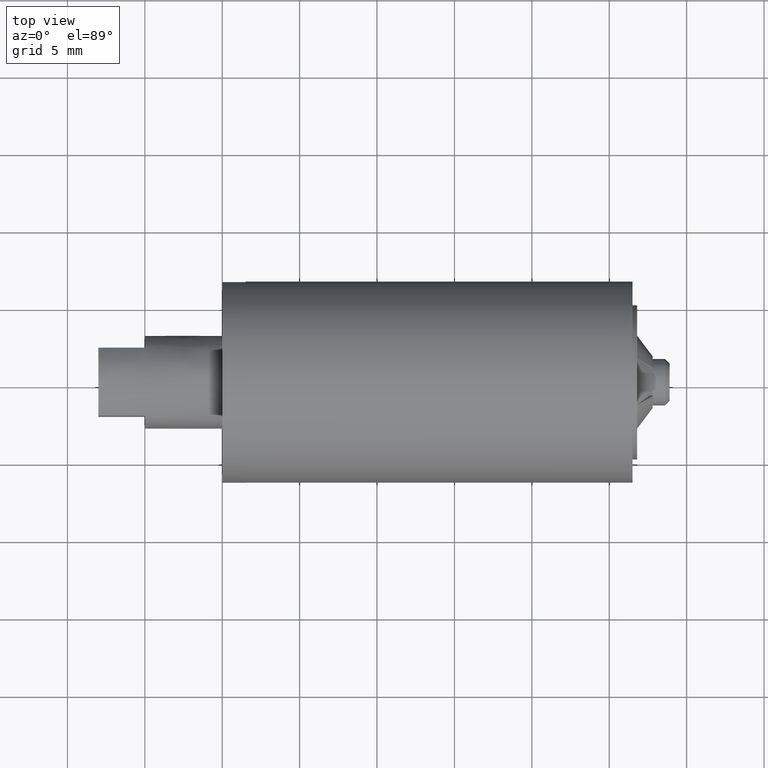
[diagram: clean part render]
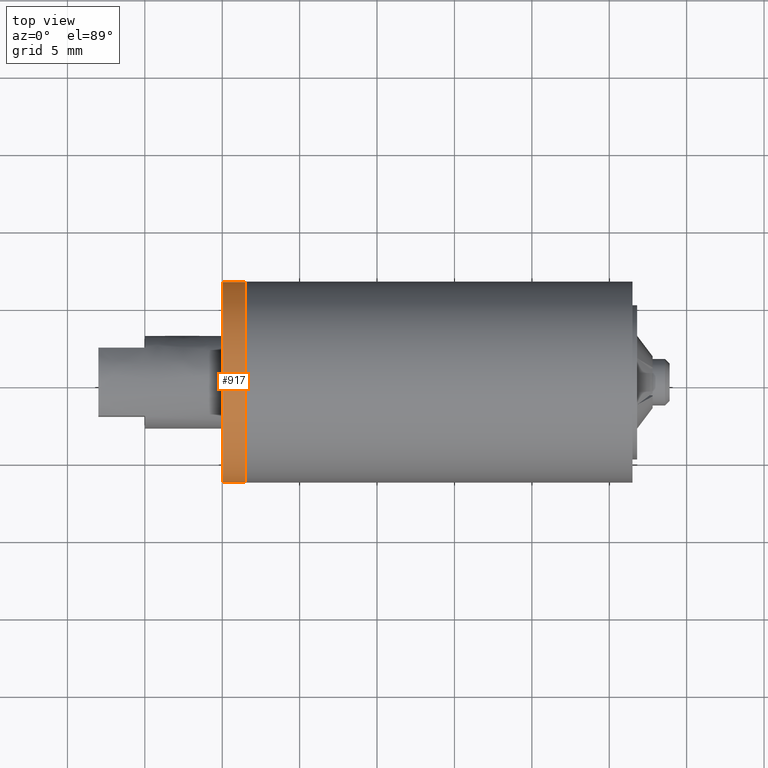
[diagram: same view with one face highlighted and labeled with its STEP entity id]
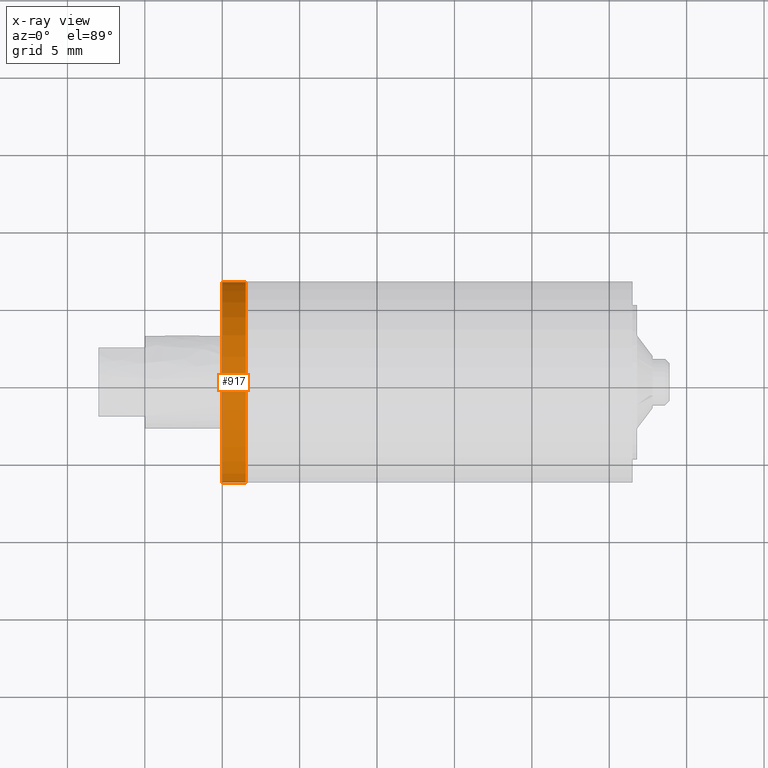
[diagram: x-ray of the same camera — body ghosted, the highlighted face saturated]
A machine part, top view. The second image highlights one B-rep face of the part: STEP entity #917.
The next image is the same camera in x-ray: the body ghosted, the highlighted face saturated — about 0% of this face is hidden behind the body in this view.
In plain terms, the highlighted face is a freeform B-spline surface patch.
Its self-contained STEP definition (entity closure, byte-faithful):
#754=CARTESIAN_POINT('',(4.999999999999833,6.454562565724228,0.767217104294249));
#755=VERTEX_POINT('',#754);
#773=CARTESIAN_POINT('',(6.500000000000000,6.454562557765618,0.767217171250149));
#774=VERTEX_POINT('',#773);
#775=CARTESIAN_POINT('',(6.500000000000000,6.454562557765618,0.767217171250149));
#776=CARTESIAN_POINT('',(4.999999999999833,6.454562565724228,0.767217104294249));
#777=QUASI_UNIFORM_CURVE('',1,(#775,#776),.UNSPECIFIED.,.F.,.U.);
#778=EDGE_CURVE('',#774,#755,#777,.T.);
#797=CARTESIAN_POINT('',(6.500000000000000,-6.487876676606036,-0.396807546661848));
#798=VERTEX_POINT('',#797);
#812=CARTESIAN_POINT('',(5.000000000000252,-6.487876682682697,-0.396807447305290));
#813=VERTEX_POINT('',#812);
#814=CARTESIAN_POINT('',(6.500000000000000,-6.487876676606036,-0.396807546661848));
#815=CARTESIAN_POINT('',(5.000000000000252,-6.487876682682697,-0.396807447305290));
#816=QUASI_UNIFORM_CURVE('',1,(#814,#815),.UNSPECIFIED.,.F.,.U.);
#817=EDGE_CURVE('',#798,#813,#816,.T.);
#835=CARTESIAN_POINT('',(6.537500000000001,-6.487876189742133,-0.396815506976570));
#836=CARTESIAN_POINT('',(6.537500000000002,-6.884691696718703,6.091060682765563));
#837=CARTESIAN_POINT('',(6.537500000000001,-0.396815506976570,6.487876189742133));
#838=CARTESIAN_POINT('',(6.537500000000001,5.730032690456756,6.862610278761427));
#839=CARTESIAN_POINT('',(6.537500000000002,6.454561921363831,0.767222525268930));
#840=CARTESIAN_POINT('',(4.961562499999999,-6.487876189742133,-0.396815506976570));
#841=CARTESIAN_POINT('',(4.961562500000000,-6.884691696718703,6.091060682765563));
#842=CARTESIAN_POINT('',(4.961562499999999,-0.396815506976570,6.487876189742133));
#843=CARTESIAN_POINT('',(4.961562499999999,5.730032690456756,6.862610278761427));
#844=CARTESIAN_POINT('',(4.961562500000000,6.454561921363831,0.767222525268930));
#852=(BOUNDED_SURFACE()B_SPLINE_SURFACE(2,1,((#835,#840),(#836,#841),(#837,#842),(#838,#843),(#839,#844)),.UNSPECIFIED.,.F.,.F.,.U.)B_SPLINE_SURFACE_WITH_KNOTS((3,2,3),(2,2),(0.0,10.769552621700470,21.108323138532921),(0.0,1.0),.UNSPECIFIED.)GEOMETRIC_REPRESENTATION_ITEM()RATIONAL_B_SPLINE_SURFACE(((1.0,1.0),(0.707106781186548,0.707106781186548),(1.0,1.0),(0.718822509939086,0.718822509939086),(0.977505800795127,0.977505800795127)))REPRESENTATION_ITEM('')SURFACE());
#853=CARTESIAN_POINT('',(5.0,0.0,6.500000000000000));
#854=VERTEX_POINT('',#853);
#855=CARTESIAN_POINT('',(5.0,0.0,6.500000000000000));
#856=CARTESIAN_POINT('',(5.0,5.773139301484392,6.500000000000001));
#857=CARTESIAN_POINT('',(4.999999999999833,6.454562565724228,0.767217104294249));
#865=(BOUNDED_CURVE()B_SPLINE_CURVE(2,(#855,#856,#857),.UNSPECIFIED.,.F.,.U.)B_SPLINE_CURVE_WITH_KNOTS((3,3),(0.0,0.229562615455933),.UNSPECIFIED.)CURVE()GEOMETRIC_REPRESENTATION_ITEM()RATIONAL_B_SPLINE_CURVE((1.0,0.731050666559508,0.956027032396849))REPRESENTATION_ITEM(''));
#866=EDGE_CURVE('',#854,#755,#865,.T.);
#867=ORIENTED_EDGE('',*,*,#866,.F.);
#868=CARTESIAN_POINT('',(5.000000000000252,-6.487876682682697,-0.396807447305290));
#869=CARTESIAN_POINT('',(5.000000000000001,-6.500000000000001,-0.198588920306305));
#870=CARTESIAN_POINT('',(5.0,-6.500000000000000,0.0));
#871=CARTESIAN_POINT('',(4.999999999999999,-6.500000000000000,6.500000000000000));
#872=CARTESIAN_POINT('',(5.0,0.0,6.500000000000000));
#880=(BOUNDED_CURVE()B_SPLINE_CURVE(2,(#868,#869,#870,#871,#872),.UNSPECIFIED.,.F.,.U.)B_SPLINE_CURVE_WITH_KNOTS((3,2,3),(0.739333176591100,0.750000000000000,1.0),.UNSPECIFIED.)CURVE()GEOMETRIC_REPRESENTATION_ITEM()RATIONAL_B_SPLINE_CURVE((0.976072501064625,0.987503039029010,1.0,0.707106781186547,1.0))REPRESENTATION_ITEM(''));
#881=EDGE_CURVE('',#813,#854,#880,.T.);
#882=ORIENTED_EDGE('',*,*,#881,.F.);
#883=ORIENTED_EDGE('',*,*,#817,.F.);
#884=CARTESIAN_POINT('',(6.500000000000000,0.0,6.500000000000000));
#885=VERTEX_POINT('',#884);
#886=CARTESIAN_POINT('',(6.500000000000000,-6.487876676606036,-0.396807546661848));
#887=CARTESIAN_POINT('',(6.499999999999999,-6.499999999999999,-0.198588970123867));
#888=CARTESIAN_POINT('',(6.500000000000000,-6.500000000000000,0.0));
#889=CARTESIAN_POINT('',(6.500000000000000,-6.500000000000000,6.500000000000000));
#890=CARTESIAN_POINT('',(6.500000000000000,0.0,6.500000000000000));
#898=(BOUNDED_CURVE()B_SPLINE_CURVE(2,(#886,#887,#888,#889,#890),.UNSPECIFIED.,.F.,.U.)B_SPLINE_CURVE_WITH_KNOTS((3,2,3),(0.739333173948685,0.750000000000000,1.0),.UNSPECIFIED.)CURVE()GEOMETRIC_REPRESENTATION_ITEM()RATIONAL_B_SPLINE_CURVE((0.976072495401416,0.987503035933229,1.0,0.707106781186547,1.0))REPRESENTATION_ITEM(''));
#899=EDGE_CURVE('',#798,#885,#898,.T.);
#900=ORIENTED_EDGE('',*,*,#899,.T.);
#901=CARTESIAN_POINT('',(6.500000000000000,0.0,6.500000000000000));
#902=CARTESIAN_POINT('',(6.500000000000001,5.773139241175608,6.500000000000001));
#903=CARTESIAN_POINT('',(6.500000000000000,6.454562557765618,0.767217171250149));
#911=(BOUNDED_CURVE()B_SPLINE_CURVE(2,(#901,#902,#903),.UNSPECIFIED.,.F.,.U.)B_SPLINE_CURVE_WITH_KNOTS((3,3),(0.0,0.229562613702791),.UNSPECIFIED.)CURVE()GEOMETRIC_REPRESENTATION_ITEM()RATIONAL_B_SPLINE_CURVE((1.0,0.731050668613442,0.956027028960614))REPRESENTATION_ITEM(''));
#912=EDGE_CURVE('',#885,#774,#911,.T.);
#913=ORIENTED_EDGE('',*,*,#912,.T.);
#914=ORIENTED_EDGE('',*,*,#778,.T.);
#915=EDGE_LOOP('',(#867,#882,#883,#900,#913,#914));
#916=FACE_OUTER_BOUND('',#915,.T.);
#917=ADVANCED_FACE('',(#916),#852,.T.);